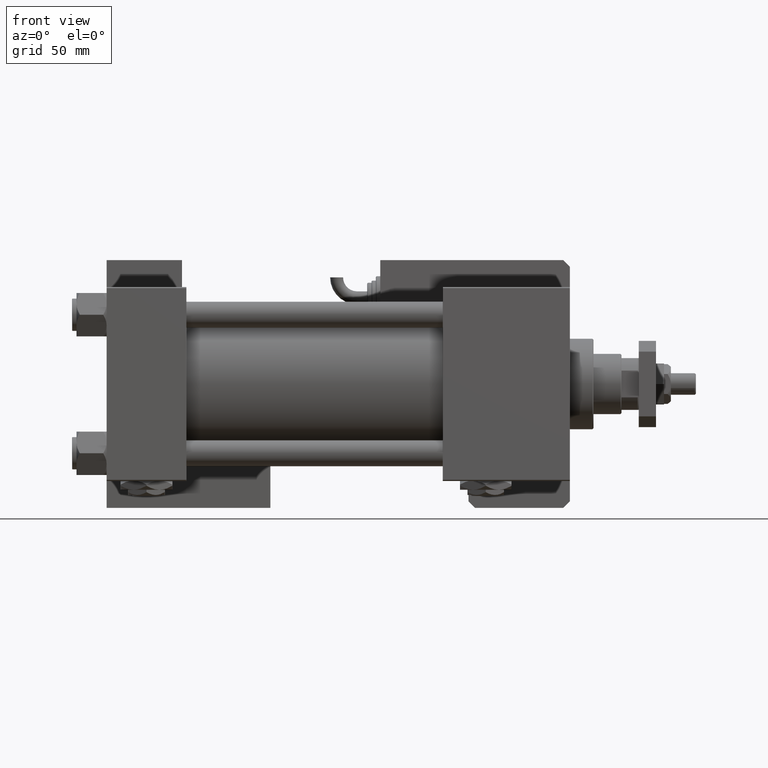
[diagram: clean part render]
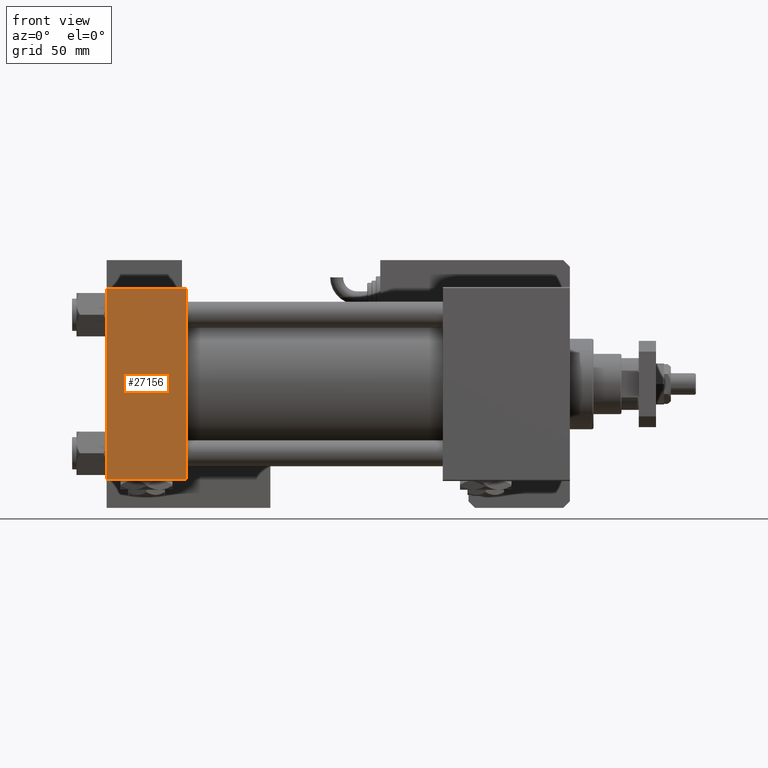
[diagram: same view with one face highlighted and labeled with its STEP entity id]
A machine part, front view. The second image highlights one B-rep face of the part: STEP entity #27156.
In plain terms, the highlighted planar face has unit normal (0, 1, 0).
Its self-contained STEP definition (entity closure, byte-faithful):
#3308 = EDGE_CURVE ( 'NONE', #11746, #45424, #25264, .T. ) ;
#3905 = DIRECTION ( 'NONE',  ( 0.000000000000000000, 0.000000000000000000, -1.000000000000000000 ) ) ;
#5510 = EDGE_CURVE ( 'NONE', #45424, #16648, #21513, .T. ) ;
#5995 = VECTOR ( 'NONE', #20630, 1000.000000000000000 ) ;
#7955 = ORIENTED_EDGE ( 'NONE', *, *, #5510, .T. ) ;
#9925 = VECTOR ( 'NONE', #3905, 1000.000000000000000 ) ;
#11746 = VERTEX_POINT ( 'NONE', #17745 ) ;
#12344 = CARTESIAN_POINT ( 'NONE',  ( 37.00000000000000000, -45.00000000000000000, 44.49999999999998579 ) ) ;
#13496 = CARTESIAN_POINT ( 'NONE',  ( 37.00000000000000000, -45.00000000000000000, 44.99999999999998579 ) ) ;
#13567 = ORIENTED_EDGE ( 'NONE', *, *, #3308, .T. ) ;
#13789 = DIRECTION ( 'NONE',  ( 0.000000000000000000, -0.000000000000000000, 1.000000000000000000 ) ) ;
#14537 = VECTOR ( 'NONE', #30819, 1000.000000000000000 ) ;
#15090 = AXIS2_PLACEMENT_3D ( 'NONE', #13496, #53987, #13789 ) ;
#15368 = CARTESIAN_POINT ( 'NONE',  ( 37.00000000000000000, -45.00000000000000000, 44.99999999999998579 ) ) ;
#16648 = VERTEX_POINT ( 'NONE', #46301 ) ;
#17745 = CARTESIAN_POINT ( 'NONE',  ( 37.00000000000000000, -45.00000000000000000, 44.49999999999998579 ) ) ;
#18168 = PLANE ( 'NONE',  #15090 ) ;
#19709 = ORIENTED_EDGE ( 'NONE', *, *, #50864, .F. ) ;
#20630 = DIRECTION ( 'NONE',  ( 1.000000000000000000, 0.000000000000000000, 0.000000000000000000 ) ) ;
#21513 = LINE ( 'NONE', #48509, #9925 ) ;
#24246 = VERTEX_POINT ( 'NONE', #48236 ) ;
#25264 = LINE ( 'NONE', #12344, #14537 ) ;
#27156 = ADVANCED_FACE ( 'NONE', ( #36084 ), #18168, .F. ) ;
#29155 = LINE ( 'NONE', #55840, #5995 ) ;
#29757 = DIRECTION ( 'NONE',  ( 0.000000000000000000, 0.000000000000000000, -1.000000000000000000 ) ) ;
#29791 = VECTOR ( 'NONE', #29757, 1000.000000000000000 ) ;
#30819 = DIRECTION ( 'NONE',  ( -1.000000000000000000, 0.000000000000000000, 0.000000000000000000 ) ) ;
#31227 = CARTESIAN_POINT ( 'NONE',  ( 0.000000000000000000, -45.00000000000000000, 44.49999999999998579 ) ) ;
#33309 = EDGE_CURVE ( 'NONE', #16648, #24246, #29155, .T. ) ;
#36084 = FACE_OUTER_BOUND ( 'NONE', #43647, .T. ) ;
#43647 = EDGE_LOOP ( 'NONE', ( #7955, #47736, #19709, #13567 ) ) ;
#45424 = VERTEX_POINT ( 'NONE', #31227 ) ;
#46301 = CARTESIAN_POINT ( 'NONE',  ( 0.000000000000000000, -45.00000000000000000, -44.49999999999997158 ) ) ;
#47736 = ORIENTED_EDGE ( 'NONE', *, *, #33309, .T. ) ;
#48236 = CARTESIAN_POINT ( 'NONE',  ( 37.00000000000000000, -45.00000000000000000, -44.49999999999997158 ) ) ;
#48509 = CARTESIAN_POINT ( 'NONE',  ( 0.000000000000000000, -45.00000000000000000, 44.99999999999998579 ) ) ;
#50864 = EDGE_CURVE ( 'NONE', #11746, #24246, #55565, .T. ) ;
#53987 = DIRECTION ( 'NONE',  ( -0.000000000000000000, 1.000000000000000000, 0.000000000000000000 ) ) ;
#55565 = LINE ( 'NONE', #15368, #29791 ) ;
#55840 = CARTESIAN_POINT ( 'NONE',  ( 37.00000000000000000, -45.00000000000000000, -44.50000000000000000 ) ) ;